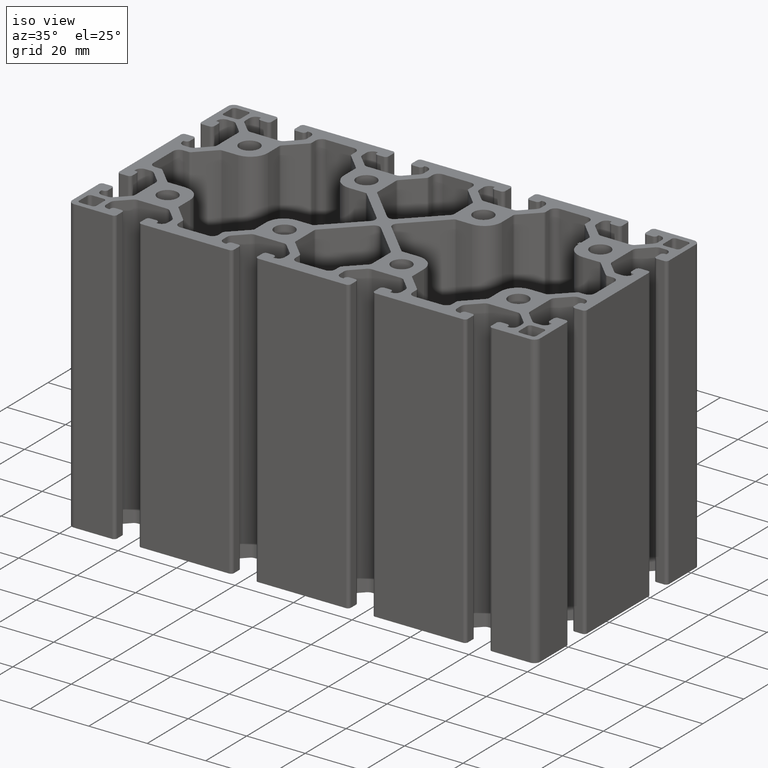
[diagram: clean part render]
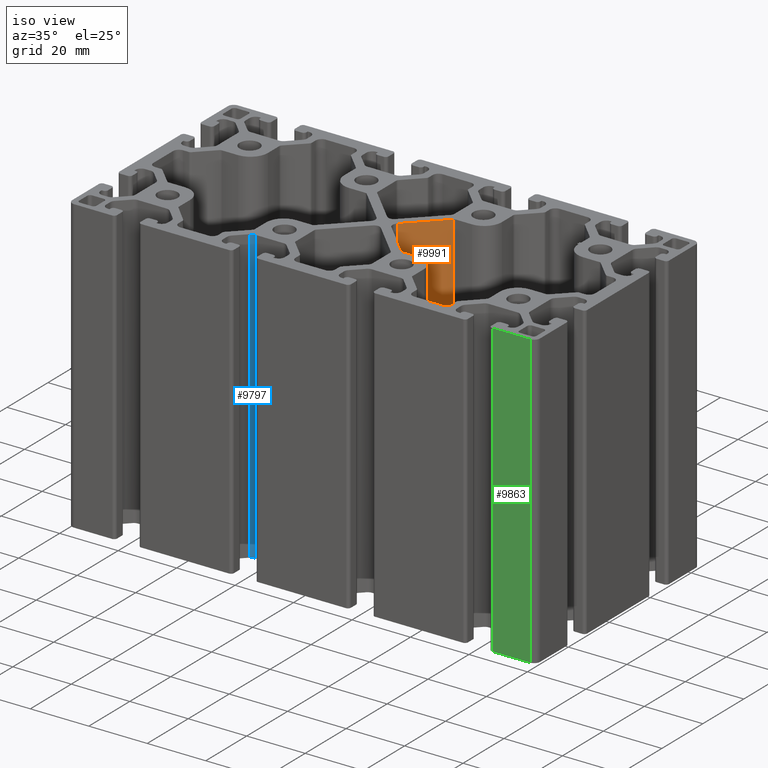
[diagram: same view with three faces highlighted in distinct colors, each labeled with its STEP entity id]
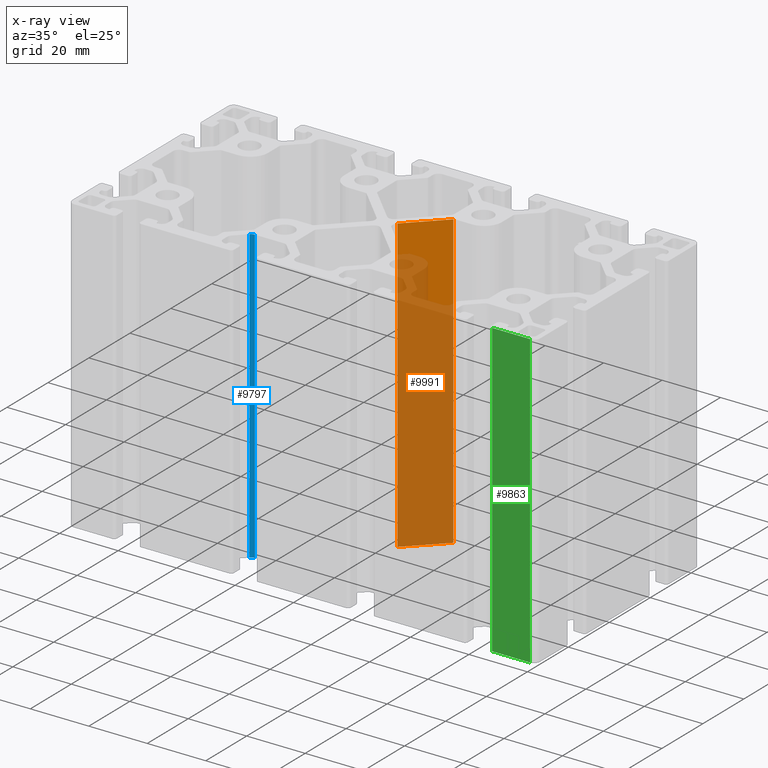
[diagram: x-ray of the same camera — body ghosted, the three highlighted faces saturated]
A machine part, iso view with three faces highlighted in distinct colors.
The next image is the same camera in x-ray (body ghosted, the three faces saturated) — at least one of them is partly hidden behind the body in this view.
Their STEP definitions:

[orange] entity #9991 — the highlighted planar face has unit normal (0.7071, -0.7071, 0).
#201=PLANE('',#10982);
#672=FACE_OUTER_BOUND('',#1217,.T.);
#1217=EDGE_LOOP('',(#8791,#8792,#8793,#8794));
#1371=LINE('',#14148,#2388);
#1579=LINE('',#14968,#2596);
#1834=LINE('',#15918,#2851);
#2236=LINE('',#16843,#3253);
#2388=VECTOR('',#11150,100.);
#2596=VECTOR('',#11774,15.9705627513459);
#2851=VECTOR('',#12475,15.9705627513459);
#3253=VECTOR('',#13679,100.);
#3890=VERTEX_POINT('',#14141);
#3893=VERTEX_POINT('',#14146);
#4297=VERTEX_POINT('',#14967);
#4769=VERTEX_POINT('',#15916);
#4899=EDGE_CURVE('',#3890,#3893,#1371,.T.);
#5304=EDGE_CURVE('',#4297,#3890,#1579,.T.);
#5781=EDGE_CURVE('',#4769,#3893,#1834,.T.);
#6244=EDGE_CURVE('',#4297,#4769,#2236,.T.);
#8791=ORIENTED_EDGE('',*,*,#5781,.F.);
#8792=ORIENTED_EDGE('',*,*,#6244,.F.);
#8793=ORIENTED_EDGE('',*,*,#5304,.T.);
#8794=ORIENTED_EDGE('',*,*,#4899,.T.);
#9991=ADVANCED_FACE('',(#672),#201,.T.);
#10982=AXIS2_PLACEMENT_3D('',#16844,#13680,#13681);
#11150=DIRECTION('',(0.,0.,-1.));
#11774=DIRECTION('',(-0.707106781186547,-0.707106781186547,0.));
#12475=DIRECTION('',(-0.707106781186547,-0.707106781186547,0.));
#13679=DIRECTION('',(0.,0.,-1.));
#13680=DIRECTION('center_axis',(0.707106781186548,-0.707106781186548,0.));
#13681=DIRECTION('ref_axis',(0.,0.,-1.));
#14141=CARTESIAN_POINT('',(6.48528137363766,1.41421355843117,100.));
#14146=CARTESIAN_POINT('',(6.48528137363766,1.41421355843117,0.));
#14148=CARTESIAN_POINT('',(6.48528137363766,1.41421355843117,100.));
#14967=CARTESIAN_POINT('',(17.7781745944796,12.7071067792732,100.));
#14968=CARTESIAN_POINT('',(17.7781745944797,12.7071067792732,100.));
#15916=CARTESIAN_POINT('',(17.7781745944796,12.7071067792732,0.));
#15918=CARTESIAN_POINT('',(17.7781745944797,12.7071067792732,0.));
#16843=CARTESIAN_POINT('',(17.7781745944796,12.7071067792732,100.));
#16844=CARTESIAN_POINT('Origin',(5.92063671259555,0.849568897389062,-5.));

[blue] entity #9797 — the highlighted cylindrical surface (edge-blend (fillet) strip) has radius 2 mm, axis along (0, 0, -1).
#478=FACE_OUTER_BOUND('',#1023,.T.);
#1023=EDGE_LOOP('',(#8015,#8016,#8017,#8018));
#2044=LINE('',#16457,#3061);
#2045=LINE('',#16459,#3062);
#3061=VECTOR('',#13099,100.);
#3062=VECTOR('',#13102,100.);
#3493=CIRCLE('',#10248,1.9999999739807);
#3736=CIRCLE('',#10492,1.9999999739807);
#4064=VERTEX_POINT('',#14499);
#4065=VERTEX_POINT('',#14501);
#4579=VERTEX_POINT('',#15534);
#4580=VERTEX_POINT('',#15536);
#5070=EDGE_CURVE('',#4064,#4065,#3493,.T.);
#5589=EDGE_CURVE('',#4580,#4579,#3736,.T.);
#6052=EDGE_CURVE('',#4064,#4580,#2044,.T.);
#6053=EDGE_CURVE('',#4065,#4579,#2045,.T.);
#8015=ORIENTED_EDGE('',*,*,#5589,.T.);
#8016=ORIENTED_EDGE('',*,*,#6053,.F.);
#8017=ORIENTED_EDGE('',*,*,#5070,.F.);
#8018=ORIENTED_EDGE('',*,*,#6052,.T.);
#9474=CYLINDRICAL_SURFACE('',#10788,1.9999999739807);
#9797=ADVANCED_FACE('',(#478),#9474,.F.);
#10248=AXIS2_PLACEMENT_3D('',#14502,#11430,#11431);
#10492=AXIS2_PLACEMENT_3D('',#15537,#12194,#12195);
#10788=AXIS2_PLACEMENT_3D('',#16458,#13100,#13101);
#11430=DIRECTION('center_axis',(0.,0.,-1.));
#11431=DIRECTION('ref_axis',(1.,0.,0.));
#12194=DIRECTION('center_axis',(0.,0.,-1.));
#12195=DIRECTION('ref_axis',(1.,0.,0.));
#13099=DIRECTION('',(0.,0.,-1.));
#13100=DIRECTION('center_axis',(0.,0.,-1.));
#13101=DIRECTION('ref_axis',(-1.,0.,0.));
#13102=DIRECTION('',(0.,0.,-1.));
#14499=CARTESIAN_POINT('',(-23.3682720110284,-28.0857864244987,100.));
#14501=CARTESIAN_POINT('',(-21.9540584510283,-27.4999999844986,100.));
#14502=CARTESIAN_POINT('Origin',(-21.9540584570596,-29.4999999584793,100.));
#15534=CARTESIAN_POINT('',(-21.9540584510283,-27.4999999844986,0.));
#15536=CARTESIAN_POINT('',(-23.3682720110284,-28.0857864244987,0.));
#15537=CARTESIAN_POINT('Origin',(-21.9540584570596,-29.4999999584793,0.));
#16457=CARTESIAN_POINT('',(-23.3682720110284,-28.0857864244987,100.));
#16458=CARTESIAN_POINT('Origin',(-21.9540584570596,-29.4999999584793,100.00000001));
#16459=CARTESIAN_POINT('',(-21.9540584510283,-27.4999999844986,100.));

[green] entity #9863 — the highlighted planar face has unit normal (0, 1, 0).
#131=PLANE('',#10854);
#544=FACE_OUTER_BOUND('',#1089,.T.);
#1089=EDGE_LOOP('',(#8279,#8280,#8281,#8282));
#1490=LINE('',#14634,#2507);
#1695=LINE('',#15405,#2712);
#2110=LINE('',#16589,#3127);
#2111=LINE('',#16591,#3128);
#2507=VECTOR('',#11527,12.9999999900002);
#2712=VECTOR('',#12098,12.9999999900002);
#3127=VECTOR('',#13297,100.);
#3128=VECTOR('',#13300,100.);
#4130=VERTEX_POINT('',#14631);
#4131=VERTEX_POINT('',#14633);
#4513=VERTEX_POINT('',#15402);
#4514=VERTEX_POINT('',#15404);
#5136=EDGE_CURVE('',#4130,#4131,#1490,.T.);
#5523=EDGE_CURVE('',#4514,#4513,#1695,.T.);
#6118=EDGE_CURVE('',#4130,#4514,#2110,.T.);
#6119=EDGE_CURVE('',#4131,#4513,#2111,.T.);
#8279=ORIENTED_EDGE('',*,*,#5523,.T.);
#8280=ORIENTED_EDGE('',*,*,#6119,.F.);
#8281=ORIENTED_EDGE('',*,*,#5136,.F.);
#8282=ORIENTED_EDGE('',*,*,#6118,.T.);
#9863=ADVANCED_FACE('',(#544),#131,.F.);
#10854=AXIS2_PLACEMENT_3D('',#16590,#13298,#13299);
#11527=DIRECTION('',(1.,0.,0.));
#12098=DIRECTION('',(1.,0.,0.));
#13297=DIRECTION('',(0.,0.,-1.));
#13298=DIRECTION('center_axis',(0.,1.,0.));
#13299=DIRECTION('ref_axis',(0.,0.,1.));
#13300=DIRECTION('',(0.,0.,-1.));
#14631=CARTESIAN_POINT('',(67.9497474989721,-39.9999999844985,100.));
#14633=CARTESIAN_POINT('',(80.9497474889723,-39.9999999844985,100.));
#14634=CARTESIAN_POINT('',(67.9497474989721,-39.9999999844985,100.));
#15402=CARTESIAN_POINT('',(80.9497474889723,-39.9999999844985,0.));
#15404=CARTESIAN_POINT('',(67.9497474989721,-39.9999999844985,0.));
#15405=CARTESIAN_POINT('',(67.9497474989721,-39.9999999844985,0.));
#16589=CARTESIAN_POINT('',(67.9497474989721,-39.9999999844985,100.));
#16590=CARTESIAN_POINT('Origin',(67.2997474994721,-39.9999999844985,-5.));
#16591=CARTESIAN_POINT('',(80.9497474889723,-39.9999999844985,100.));